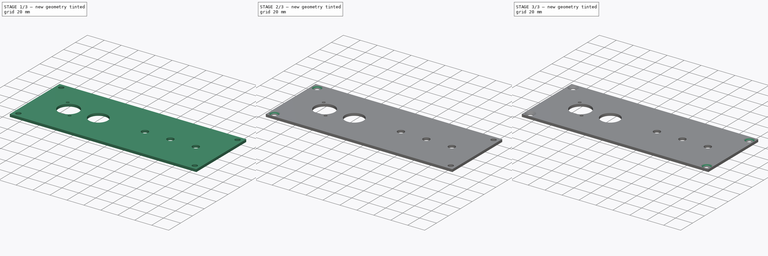
[diagram: build sequence overview — one tinted view per stage of 3, left to right]
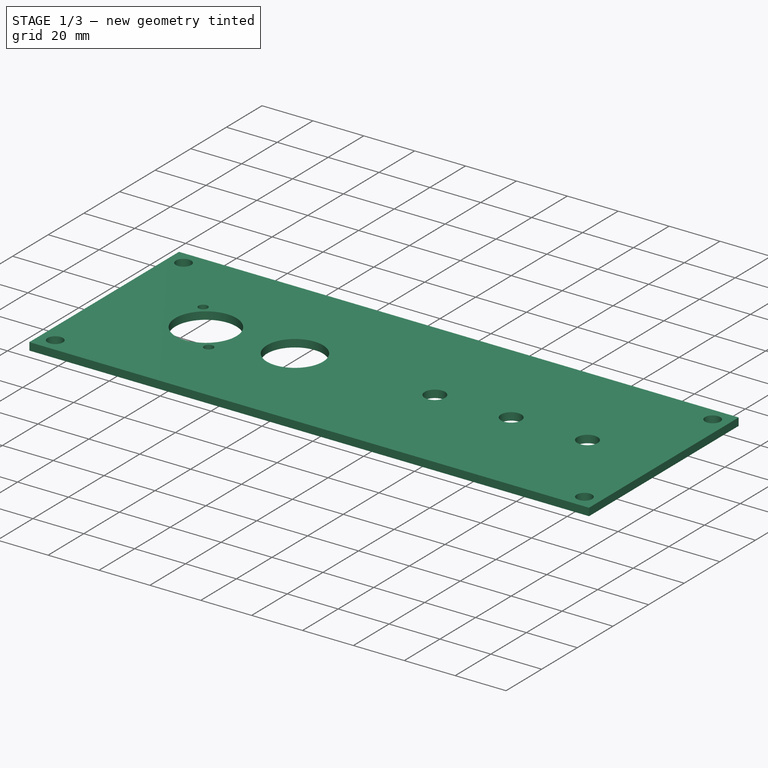
[diagram: stage 1 of 3 — iso view after this stage's code; geometry added in this stage tinted green]
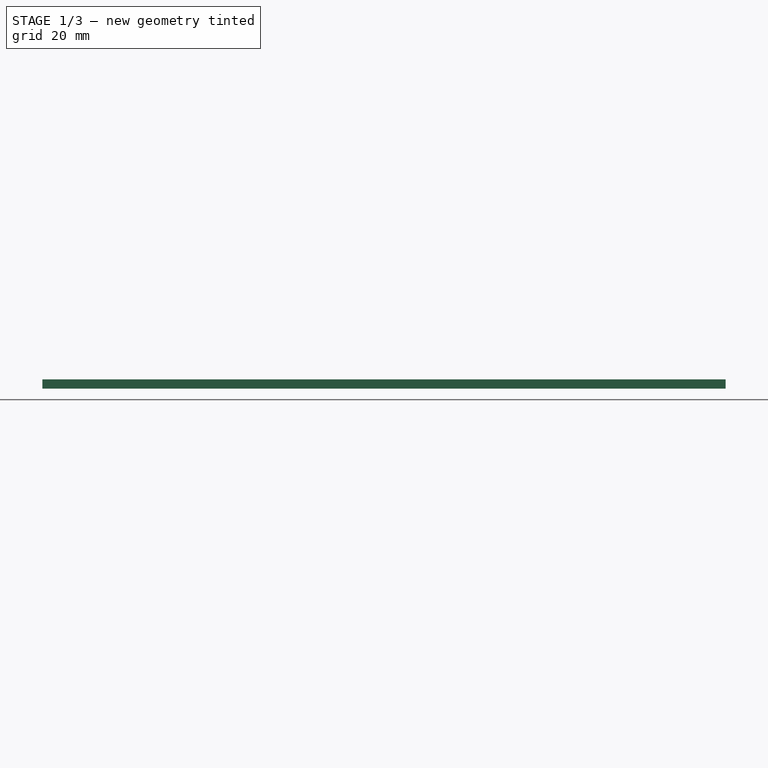
[diagram: stage 1 of 3 — front view after this stage's code; geometry added in this stage tinted green]
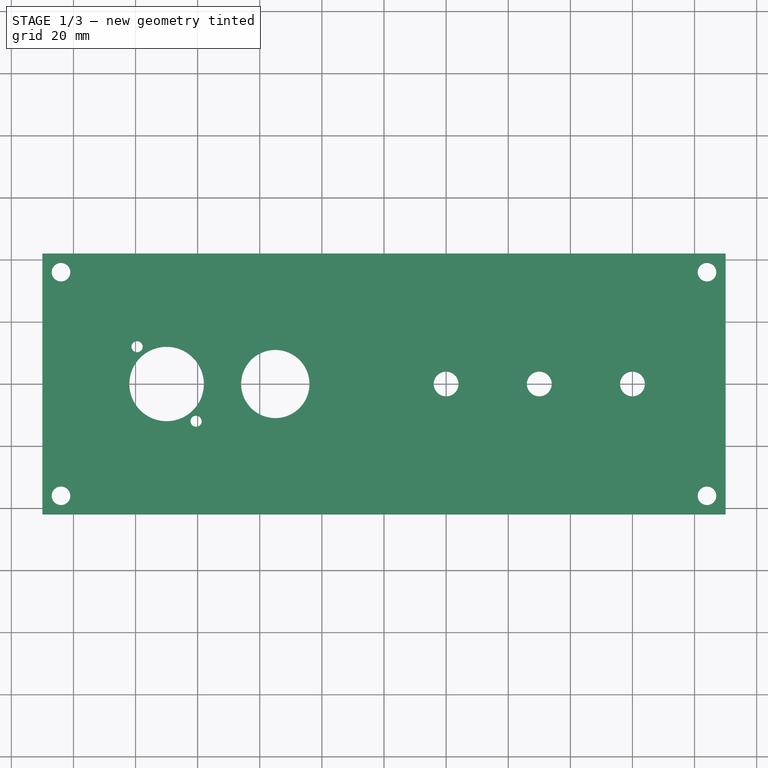
[diagram: stage 1 of 3 — top view after this stage's code; geometry added in this stage tinted green]
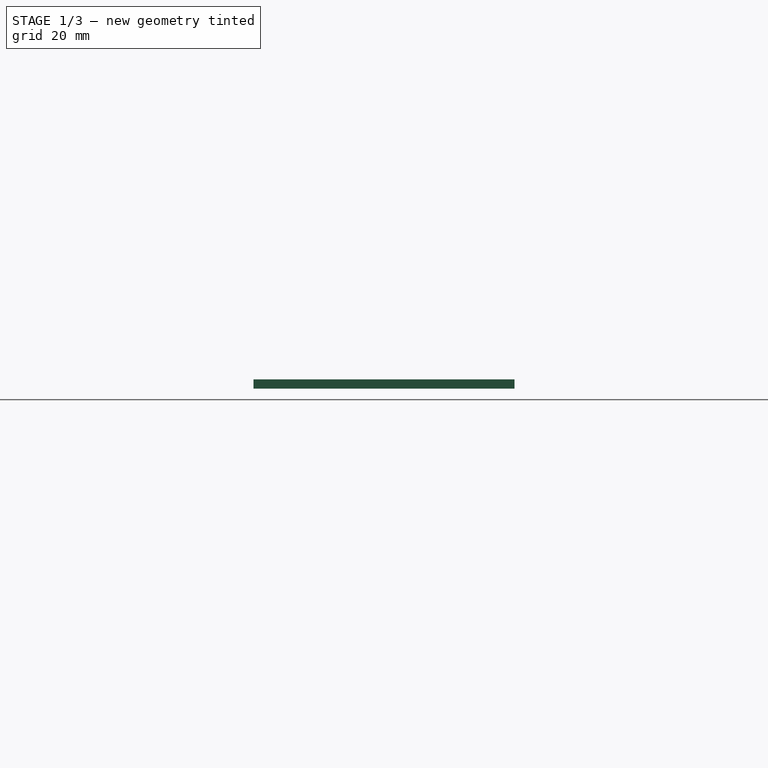
[diagram: stage 1 of 3 — right view after this stage's code; geometry added in this stage tinted green]
FCSTD DOCUMENT  (FreeCAD 1.0R39319 (Git))
Label: back_panel
License: All rights reserved
LicenseURL: http://en.wikipedia.org/wiki/All_rights_reserved
objects: PartDesign::Chamfer×4, Sketcher::SketchObject×2, PartDesign::Pad×1, PartDesign::Pocket×1, TechDraw::DrawSVGTemplate×1, TechDraw::DrawProjGroupItem×1, TechDraw::DrawProjGroup×1, TechDraw::DrawPage×1, PartDesign::Body×1
note: 23 computed .brp shape members not serialized (recipe doc carries the construction recipe); baked Part::Feature solids carry a one-line shape summary decoded from their .brp

FEATURE [Sketcher::SketchObject] Sketch001  label="Sketch"
  ArcFitTolerance = 0
  AttachmentSupport = -> [XY_Plane]
  FullyConstrained = true
  MakeInternals = false
  MapMode = 5
  sketch-geometry (19):
    g0: Circle CenterX=-104 CenterY=-36 CenterZ=0 NormalX=0 NormalY=0 NormalZ=1 AngleXU=0 Radius=3
    g1: Circle CenterX=-104 CenterY=36 CenterZ=0 NormalX=0 NormalY=0 NormalZ=1 AngleXU=0 Radius=3
    g2: Circle CenterX=104 CenterY=36 CenterZ=0 NormalX=0 NormalY=0 NormalZ=1 AngleXU=0 Radius=3
    g3: Circle CenterX=104 CenterY=-36 CenterZ=0 NormalX=0 NormalY=0 NormalZ=1 AngleXU=0 Radius=3
    g4: LineSegment StartX=-110 StartY=42 StartZ=0 EndX=110 EndY=42 EndZ=0
    g5: LineSegment StartX=110 StartY=42 StartZ=0 EndX=110 EndY=-42 EndZ=0
    g6: LineSegment StartX=110 StartY=-42 StartZ=0 EndX=-110 EndY=-42 EndZ=0
    g7: LineSegment StartX=-110 StartY=-42 StartZ=0 EndX=-110 EndY=42 EndZ=0
    g8: Circle CenterX=-35 CenterY=0 CenterZ=0 NormalX=0 NormalY=0 NormalZ=1 AngleXU=0 Radius=11
    g9: Circle CenterX=80 CenterY=0 CenterZ=0 NormalX=0 NormalY=0 NormalZ=1 AngleXU=0 Radius=4
    g10: Circle CenterX=50 CenterY=0 CenterZ=0 NormalX=0 NormalY=0 NormalZ=1 AngleXU=0 Radius=4
    g11: Circle CenterX=20 CenterY=0 CenterZ=0 NormalX=0 NormalY=0 NormalZ=1 AngleXU=0 Radius=4
    g12: LineSegment [constr] StartX=50 StartY=0 StartZ=0 EndX=80 EndY=0 EndZ=0
    g13: LineSegment [constr] StartX=50 StartY=0 StartZ=0 EndX=20 EndY=0 EndZ=0
    g14: Circle CenterX=-70 CenterY=0 CenterZ=0 NormalX=0 NormalY=0 NormalZ=1 AngleXU=0 Radius=12
    g15: Circle CenterX=-79.5 CenterY=12 CenterZ=0 NormalX=0 NormalY=0 NormalZ=1 AngleXU=0 Radius=1.8
    g16: Circle CenterX=-60.5 CenterY=-12 CenterZ=0 NormalX=0 NormalY=0 NormalZ=1 AngleXU=0 Radius=1.8
    g17: LineSegment [constr] StartX=-79.5 StartY=12 StartZ=0 EndX=-70 EndY=0 EndZ=0
    g18: LineSegment [constr] StartX=-70 StartY=0 StartZ=0 EndX=-60.5 EndY=-12 EndZ=0
  constraints (49):
    c: Symmetric(g0,g2,g-1)
    c: Symmetric(g0,g3,g-2)
    c: Symmetric(g0,g1,g-1)
    c: Radius(g0) = 3
    c: Equal(g0,g3)
    c: Equal(g0,g2)
    c: Equal(g0,g1)
    c: DistanceX(g0,g3) = 208
    c: DistanceY(g0,g1) = 72
    c: Coincident(g4,g5)
    c: Coincident(g5,g6)
    c: Coincident(g6,g7)
    c: Coincident(g7,g4)
    c: Horizontal(g4)
    c: Horizontal(g6)
    c: Vertical(g5)
    c: Vertical(g7)
    c: Symmetric(g6,g4,g-1)
    c: DistanceX(g6,g0) = 6
    c: DistanceY(g6,g0) = 6
    c: PointOnObject(g8,g-1)
    c: Radius(g8) = 11
    c: DistanceX(g8,g5) = 145
    c: PointOnObject(g9,g-1)
    c: PointOnObject(g10,g-1)
    c: PointOnObject(g11,g-1)
    c: Radius(g11) = 4
    c: Equal(g11,g10)
    c: Equal(g11,g9)
    c: DistanceX(g11,g10) = 30
    c: Coincident(g12,g10)
    c: Coincident(g12,g9)
    c: Coincident(g13,g10)
    c: Coincident(g13,g11)
    c: Equal(g13,g12)
    c: DistanceX(g9,g5) = 30
    c: PointOnObject(g14,g-1)
    c: Radius(g14) = 12
    c: Radius(g15) = 1.8
    c: Equal(g15,g16)
    c: DistanceX(g15,g16) = 19
    c: DistanceY(g16,g15) = 24
    c: Coincident(g17,g15)
    c: Coincident(g17,g14)
    c: Coincident(g18,g14)
    c: Coincident(g18,g16)
    c: Equal(g17,g18)
    c: Parallel(g17,g18)
    c: DistanceX(g6,g14) = 40
FEATURE [PartDesign::Pad] Pad
  AllowMultiFace = false
  Direction = (0,0,1)
  Length = 3
  Length2 = 100
  Profile = -> Sketch001
  Suppressed = false
  Type = 0
FEATURE [Sketcher::SketchObject] Sketch  label="Sketch001"
  ArcFitTolerance = 0
  AttachmentSupport = -> [Pad]
  FullyConstrained = true
  MakeInternals = false
  MapMode = 5
  Placement = pos=(0,0,0) rot=(1,0,0;3.14159rad)
  sketch-geometry (17):
    g0: LineSegment StartX=10 StartY=2 StartZ=0 EndX=13 EndY=2 EndZ=0
    g1: LineSegment StartX=13 StartY=2 StartZ=0 EndX=13 EndY=-2 EndZ=0
    g2: LineSegment StartX=13 StartY=-2 StartZ=0 EndX=10 EndY=-2 EndZ=0
    g3: LineSegment StartX=10 StartY=-2 StartZ=0 EndX=10 EndY=2 EndZ=0
    g4: LineSegment StartX=43 StartY=2 StartZ=0 EndX=40 EndY=2 EndZ=0
    g5: LineSegment StartX=40 StartY=2 StartZ=0 EndX=40 EndY=-2 EndZ=0
    g6: LineSegment StartX=40 StartY=-2 StartZ=0 EndX=43 EndY=-2 EndZ=0
    g7: LineSegment StartX=43 StartY=-2 StartZ=0 EndX=43 EndY=2 EndZ=0
    g8: LineSegment StartX=70 StartY=2 StartZ=0 EndX=73 EndY=2 EndZ=0
    g9: LineSegment StartX=73 StartY=2 StartZ=0 EndX=73 EndY=-2 EndZ=0
    g10: LineSegment StartX=73 StartY=-2 StartZ=0 EndX=70 EndY=-2 EndZ=0
    g11: LineSegment StartX=70 StartY=-2 StartZ=0 EndX=70 EndY=2 EndZ=0
    g12: LineSegment [constr] StartX=10 StartY=2 StartZ=0 EndX=13 EndY=-2 EndZ=0
    g13: LineSegment [constr] StartX=10 StartY=-2 StartZ=0 EndX=13 EndY=2 EndZ=0
    g14: GeomPoint [constr] X=11.5 Y=0 Z=0
    g15: LineSegment [constr] StartX=13 StartY=-2 StartZ=0 EndX=40 EndY=-2 EndZ=0
    g16: LineSegment [constr] StartX=43 StartY=-2 StartZ=0 EndX=70 EndY=-2 EndZ=0
  constraints (46):
    c: Coincident(g0,g1)
    c: Coincident(g1,g2)
    c: Coincident(g2,g3)
    c: Coincident(g3,g0)
    c: Horizontal(g0)
    c: Horizontal(g2)
    c: Vertical(g1)
    c: Vertical(g3)
    c: Coincident(g4,g5)
    c: Coincident(g5,g6)
    c: Coincident(g6,g7)
    c: Coincident(g7,g4)
    c: Horizontal(g4)
    c: Horizontal(g6)
    c: Vertical(g5)
    c: Vertical(g7)
    c: Coincident(g8,g9)
    c: Coincident(g9,g10)
    c: Coincident(g10,g11)
    c: Coincident(g11,g8)
    c: Horizontal(g8)
    c: Horizontal(g10)
    c: Vertical(g9)
    c: Vertical(g11)
    c: DistanceX(g2,g2) = 3
    c: DistanceY(g3,g3) = 4
    c: Equal(g2,g6)
    c: Equal(g6,g10)
    c: Equal(g3,g7)
    c: Equal(g7,g11)
    c: Coincident(g12,g0)
    c: Coincident(g12,g1)
    c: Coincident(g13,g2)
    c: Coincident(g13,g0)
    c: PointOnObject(g14,g12)
    c: PointOnObject(g14,g13)
    c: PointOnObject(g14,g-1)
    c: PointOnObject(g6,g2)
    c: PointOnObject(g10,g2)
    c: DistanceX(g-1,g2) = 10
    c: DistanceX(g0,g4) = 30
    c: Coincident(g15,g1)
    c: Coincident(g15,g5)
    c: Coincident(g16,g6)
    c: Coincident(g16,g10)
    c: Equal(g15,g16)
FEATURE [PartDesign::Pocket] Pocket
  AllowMultiFace = false
  BaseFeature = -> Pad
  Direction = (0,0,1)
  Length = 2
  Length2 = 100
  Profile = -> Sketch
  Suppressed = false
  Type = 0
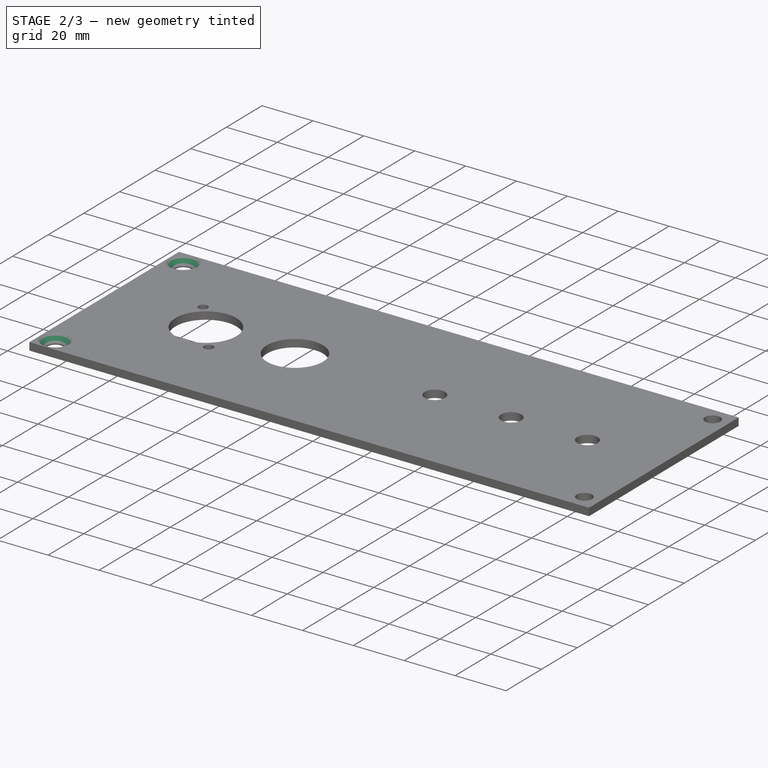
[diagram: stage 2 of 3 — iso view after this stage's code; geometry added in this stage tinted green]
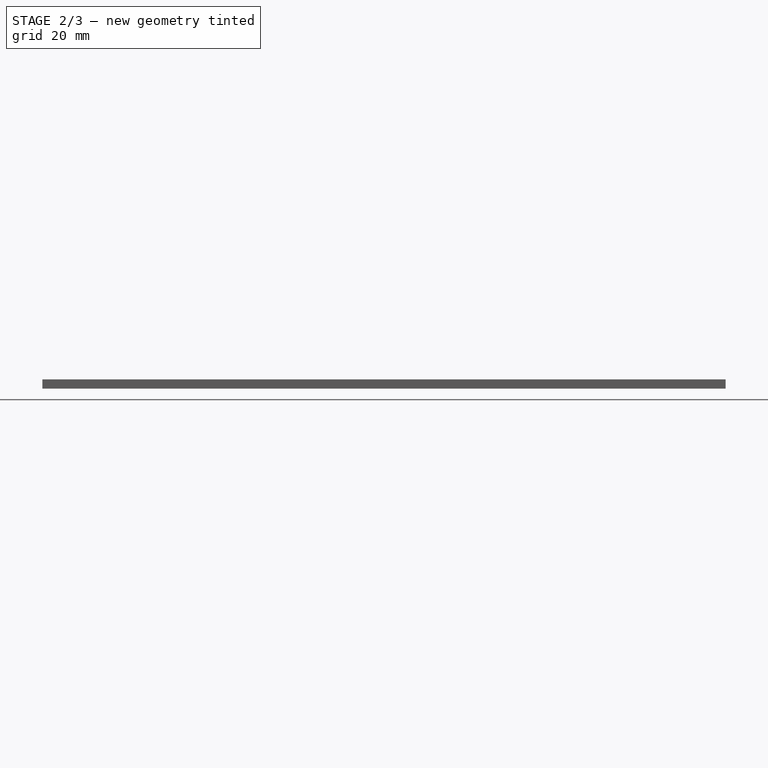
[diagram: stage 2 of 3 — front view after this stage's code; geometry added in this stage tinted green]
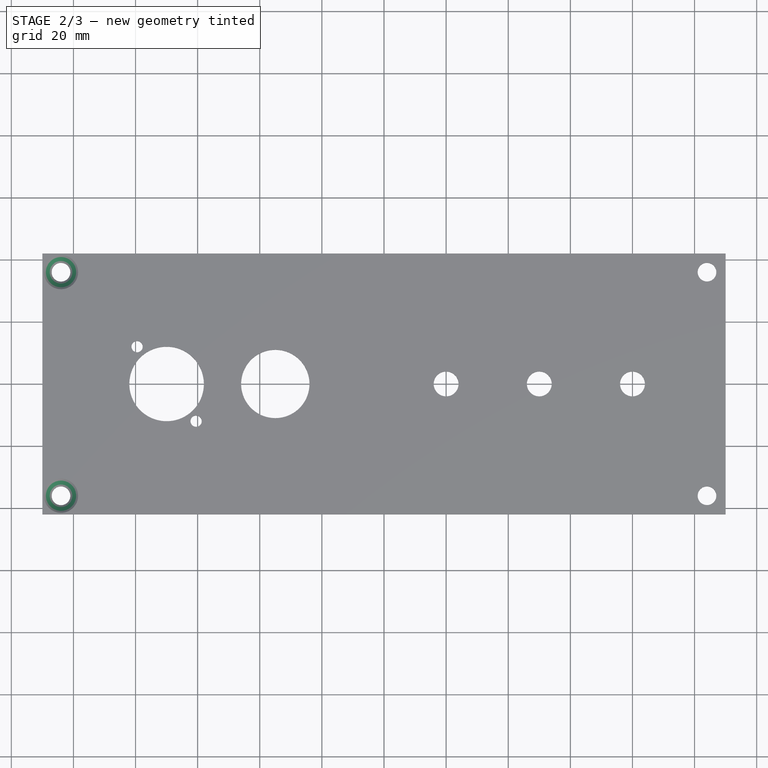
[diagram: stage 2 of 3 — top view after this stage's code; geometry added in this stage tinted green]
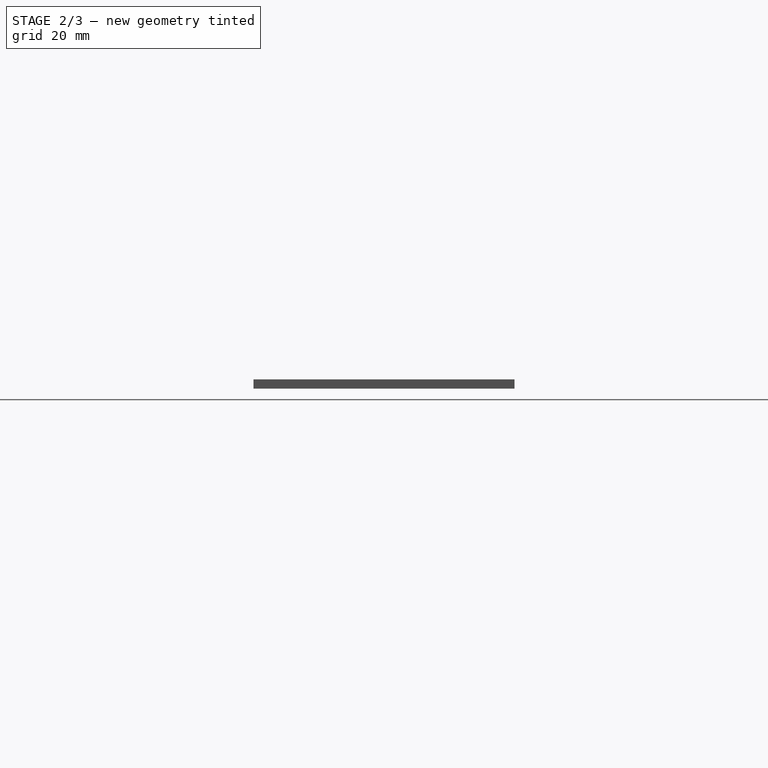
[diagram: stage 2 of 3 — right view after this stage's code; geometry added in this stage tinted green]
FEATURE [TechDraw::DrawSVGTemplate] Template
  EditableTexts = Designed_by_Name=Mathieu Abati; FC-Date=2019; FC-SC=1:1; FC-Title=<owner>; Subtitle=Back panel
  Height = 210
  Orientation = 1
  Width = 297
FEATURE [TechDraw::DrawProjGroupItem] ProjItem  label="Front"
  CoarseView = false
  Direction = (0,0,-1)
  Focus = 100
  HardHidden = false
  IsoCount = 0
  IsoHidden = false
  IsoVisible = false
  LockPosition = false
  Perspective = false
  Rotation = 0
  RotationVector = (1,0,0)
  ScaleType = 0
  ScrubCount = 1
  SeamHidden = false
  SeamVisible = false
  SmoothHidden = false
  SmoothVisible = false
  Source = -> [Pocket]
  Type = 0
  X = 0
  XDirection = (1,0,0)
  Y = 0
FEATURE [TechDraw::DrawProjGroup] ProjGroup
  Anchor = -> ProjItem
  AutoDistribute = true
  LockPosition = false
  ProjectionType = 0
  Rotation = 0
  ScaleType = 0
  Source = -> [Pocket]
  Views = -> [ProjItem]
  X = 147.338
  Y = 119.238
  spacingX = 15
  spacingY = 15
FEATURE [TechDraw::DrawPage] Page
  KeepUpdated = true
  NextBalloonIndex = 1
  ProjectionType = 0
  Template = -> Template
  Views = -> [ProjGroup]
FEATURE [PartDesign::Chamfer] Chamfer
  Angle = 45
  Base = -> Pocket [Edge44]
  BaseFeature = -> Pocket
  ChamferType = 0
  FlipDirection = false
  Refine = true
  Size = 2.5
  Size2 = 1
  SupportTransform = false
  Suppressed = false
  UseAllEdges = false
FEATURE [PartDesign::Chamfer] Chamfer001
  Angle = 45
  Base = -> Chamfer [Edge13]
  BaseFeature = -> Chamfer
  ChamferType = 0
  FlipDirection = false
  Refine = true
  Size = 2.5
  Size2 = 1
  SupportTransform = false
  Suppressed = false
  UseAllEdges = false
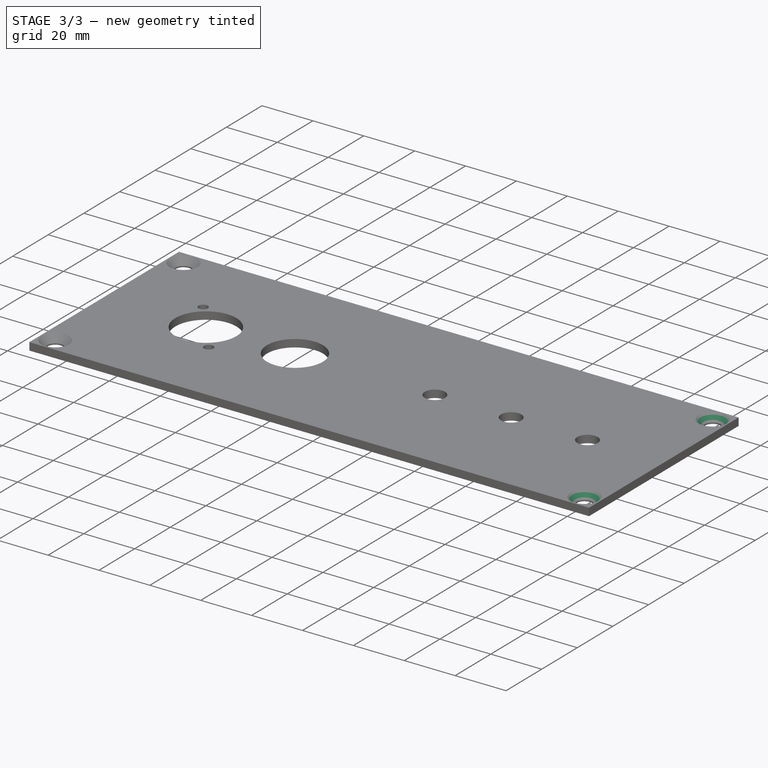
[diagram: stage 3 of 3 — iso view after this stage's code; geometry added in this stage tinted green]
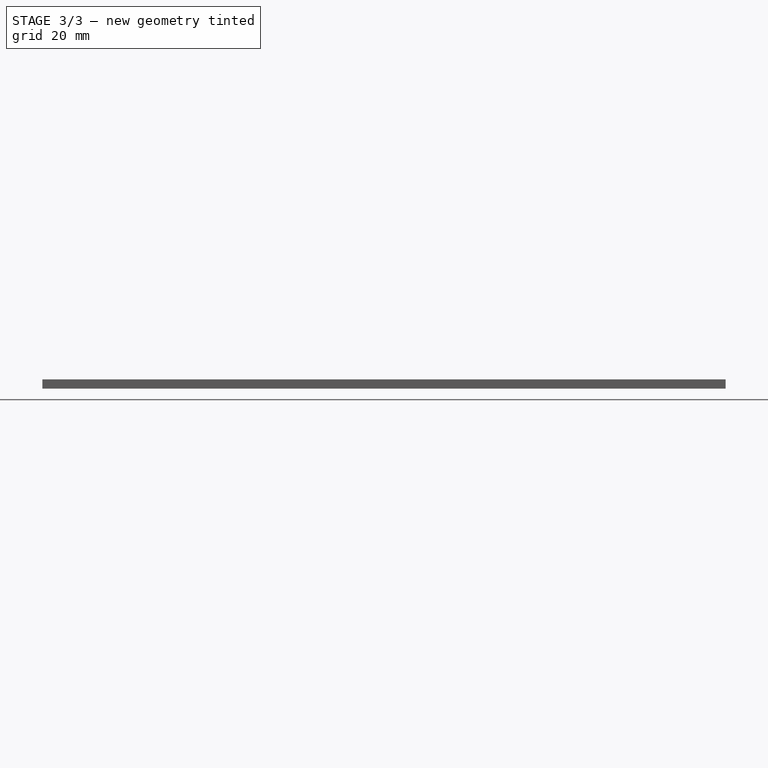
[diagram: stage 3 of 3 — front view after this stage's code; geometry added in this stage tinted green]
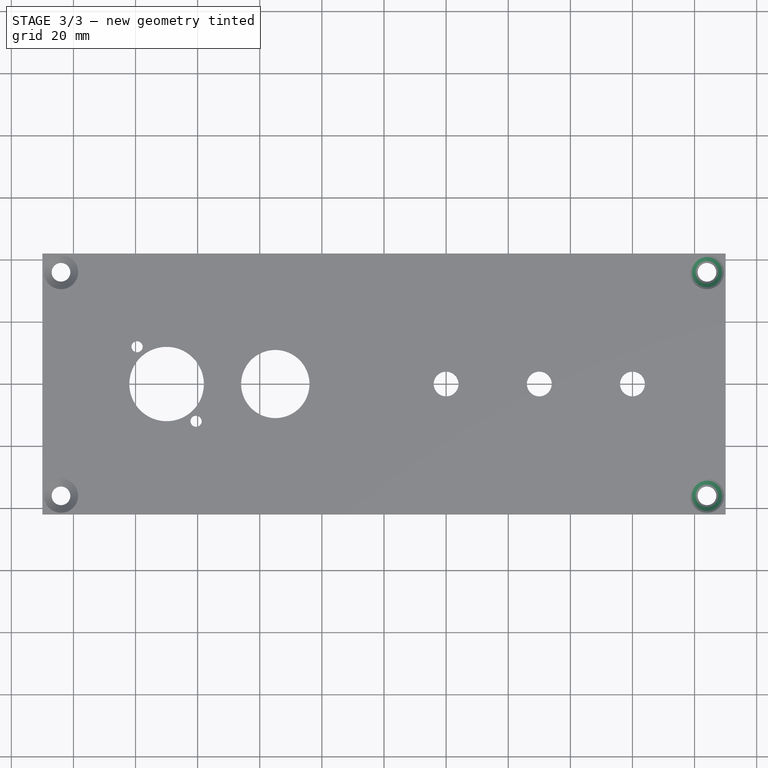
[diagram: stage 3 of 3 — top view after this stage's code; geometry added in this stage tinted green]
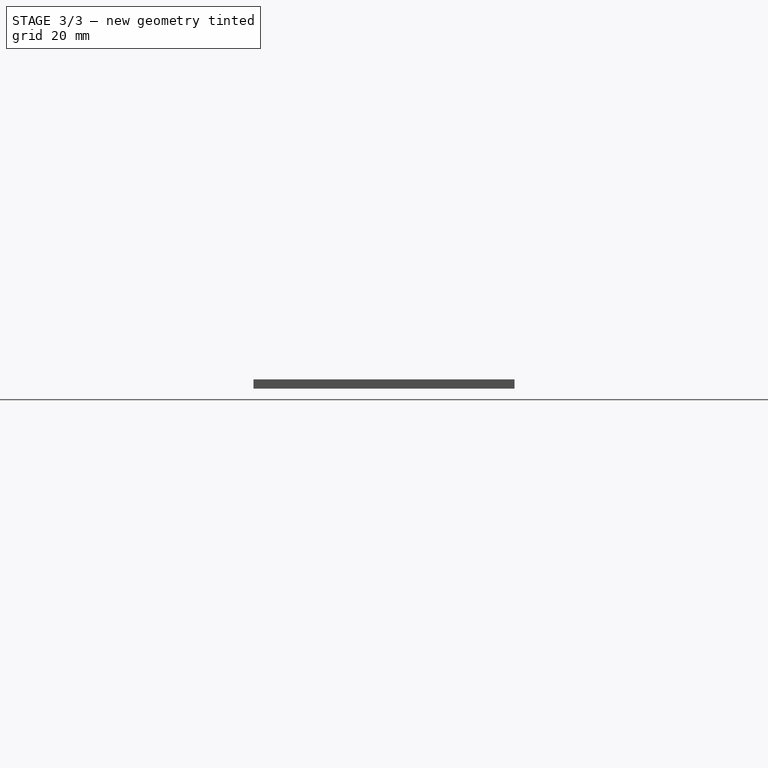
[diagram: stage 3 of 3 — right view after this stage's code; geometry added in this stage tinted green]
FEATURE [PartDesign::Chamfer] Chamfer002
  Angle = 45
  Base = -> Chamfer001 [Edge13]
  BaseFeature = -> Chamfer001
  ChamferType = 0
  FlipDirection = false
  Refine = true
  Size = 2.5
  Size2 = 1
  SupportTransform = false
  Suppressed = false
  UseAllEdges = false
FEATURE [PartDesign::Chamfer] Chamfer003
  Angle = 45
  Base = -> Chamfer002 [Edge13]
  BaseFeature = -> Chamfer002
  ChamferType = 0
  FlipDirection = false
  Refine = true
  Size = 2.5
  Size2 = 1
  SupportTransform = false
  Suppressed = false
  UseAllEdges = false
FEATURE [PartDesign::Body] Body
  AllowCompound = false
  Group = -> [Sketch001,Pad,Sketch,Pocket,Chamfer,Chamfer001,Chamfer002,Chamfer003]
  Origin = -> Origin
  Tip = -> Chamfer003
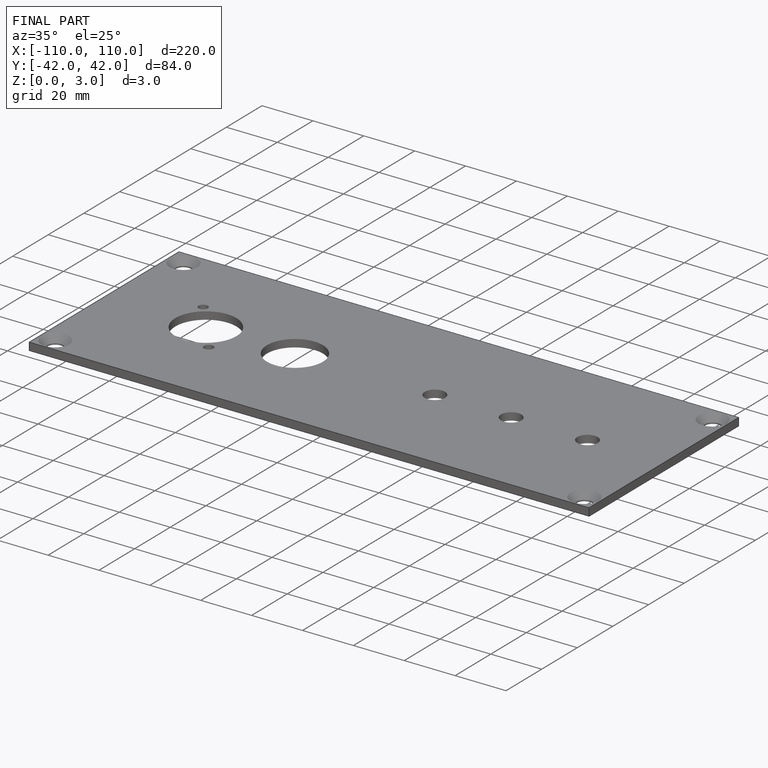
[diagram: finished part — iso view with bounding-box wireframe]
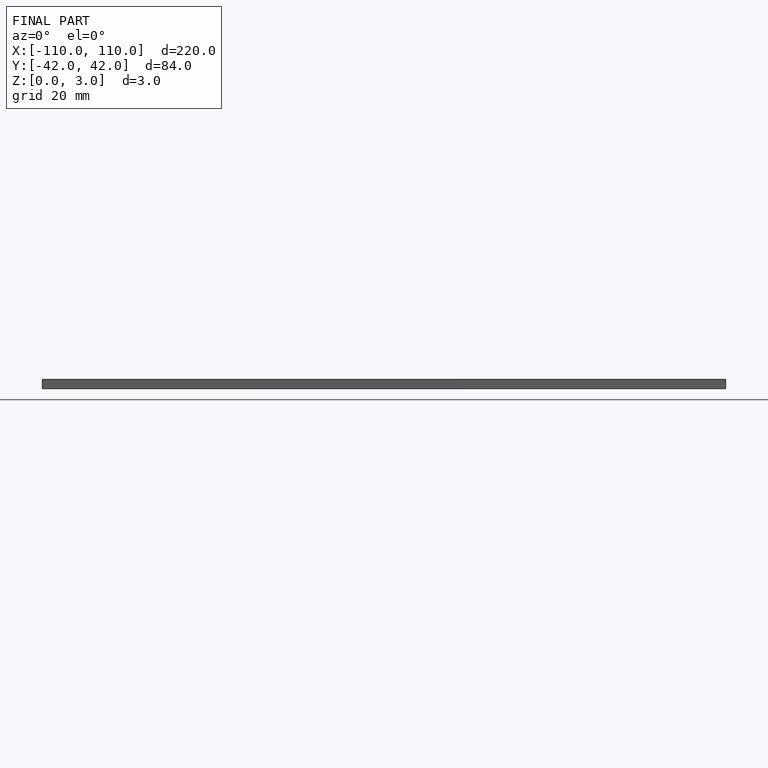
[diagram: finished part — front view with bounding-box wireframe]
